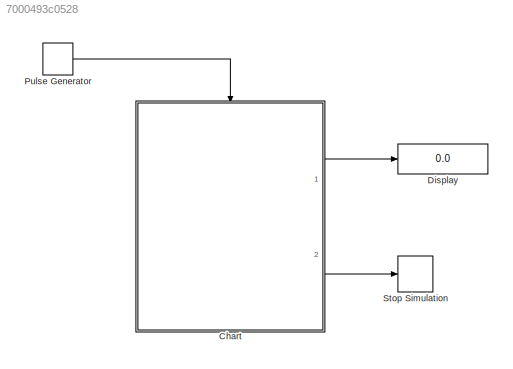
MODEL slx_7000493c0528
KIND model
CONFIG AbsTol = auto
CONFIG FixedStep = auto
CONFIG InitFcn = CG_Init;
CONFIG MaxStep = auto
CONFIG MinStep = auto
CONFIG RelTol = 1e-3
CONFIG SampleTimeConstraint = Unconstrained
CONFIG Solver = ode45
CONFIG SolverMode = Auto
CONFIG SolverName = ode45
CONFIG StartTime = 0.0
CONFIG StopFcn = CG_Stop;
CONFIG StopTime = inf
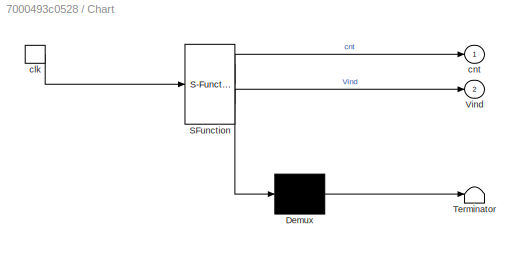
BLOCK [SubSystem] Chart
  ErrorFcn = Stateflow.Translate.translate
  PermitHierarchicalResolution = ExplicitOnly
  Ports = [0, 2, 0, 1]
  RequestExecContextInheritance = off
  SFBlockType = Chart
  TreatAsAtomicUnit = on
BLOCK [Demux] Chart/ Demux 
  Outputs = 1
  Ports = [1, 1]
BLOCK [S-Function] Chart/ SFunction 
  EnableBusSupport = on
  FunctionName = sf_sfun
  PortCounts = [1 3]
  Ports = [1, 3]
  Tag = Stateflow S-Function lab_exer_mat_1 1
BLOCK [Terminator] Chart/ Terminator 
BLOCK [Outport] Chart/Vind
  IconDisplay = Port number
  Port = 2
BLOCK [TriggerPort] Chart/clk
  Ports = [0, 1]
  ShowOutputPort = on
  StatesWhenEnabling = held
BLOCK [Outport] Chart/cnt
  IconDisplay = Port number
BLOCK [Display] Display
  Decimation = 1
  Ports = [1]
BLOCK [DiscretePulseGenerator] Pulse Generator
  Period = Ts
  Ports = [0, 1]
  PulseType = Time based
  PulseWidth = 0.5
BLOCK [Stop] Stop Simulation
LINE Chart:1 -> Display:1
LINE Chart:2 -> Stop Simulation:1
LINE Pulse Generator:1 -> Chart:trigger
CHART Chart states=10 transitions=17
  STATE_LABEL 'C'
  STATE_LABEL 'UpCounter\n\nentry: upc = upc + 1;\nduring: upc = upc + 1;'
  STATE_LABEL '{upc=0;}'
  STATE_LABEL 'UpCounter\n\nentry: upc = upc + 1;\nduring: upc = upc + 1;'
  STATE_LABEL 'D'
  STATE_LABEL 'S_end\n\nentry: Vind = 1;'
  STATE_LABEL 'S0\n\nentry: cnt = cnt + 1;\nml.char_vals[cnt] = ml.randi(ml.Range, 1, 1);\nml.time_vals[cnt] = upc;'
  STATE_LABEL 'S5'
  STATE_LABEL 'S4'
  STATE_LABEL 'S3'
  STATE_LABEL 'S2'
  STATE_LABEL 'S1'
  STATE_LABEL '{cnt=0;Vind=0;}'
  STATE_LABEL '[cnt==ml.Nc]'
  STATE_LABEL '[val<=ml.qs[3]]'
  STATE_LABEL '[val<=ml.qs[1]]'
  STATE_LABEL '[val<=ml.qs[2]]'
  STATE_LABEL '{val=ml.rand(1);}'
  STATE_LABEL '[val>ml.qs[3]]'
  STATE_LABEL '[cnt!=ml.Nc]'
  STATE_LABEL '[val>ml.qs[2]]'
  STATE_LABEL '[val>ml.qs[1]]'
  STATE_LABEL '{val=ml.rand(1);}'
  STATE_LABEL '{val=ml.rand(1);}'
  STATE_LABEL 'S_end\n\nentry: Vind = 1;'
  STATE_LABEL 'S0\n\nentry: cnt = cnt + 1;\nml.char_vals[cnt] = ml.randi(ml.Range, 1, 1);\nml.time_vals[cnt] = upc;'
  STATE_LABEL 'S5'
  STATE_LABEL 'S4'
  STATE_LABEL 'S3'
  STATE_LABEL 'S2'
  STATE_LABEL 'S1'
